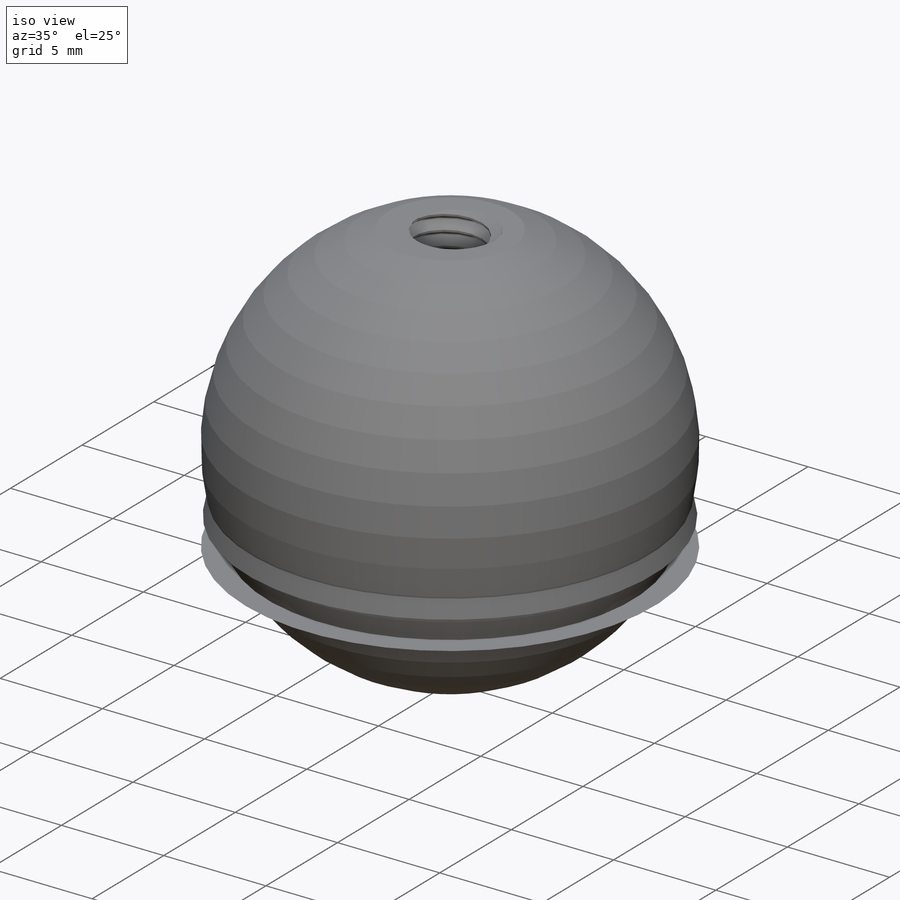
[diagram: iso view]
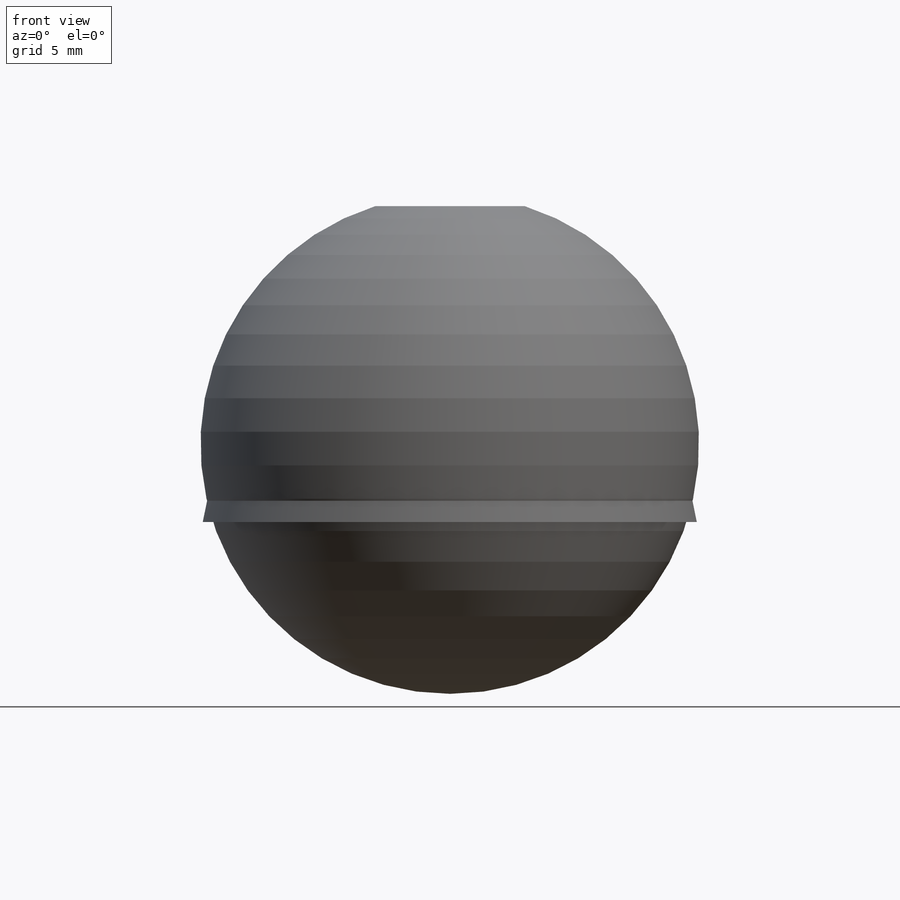
[diagram: front view]
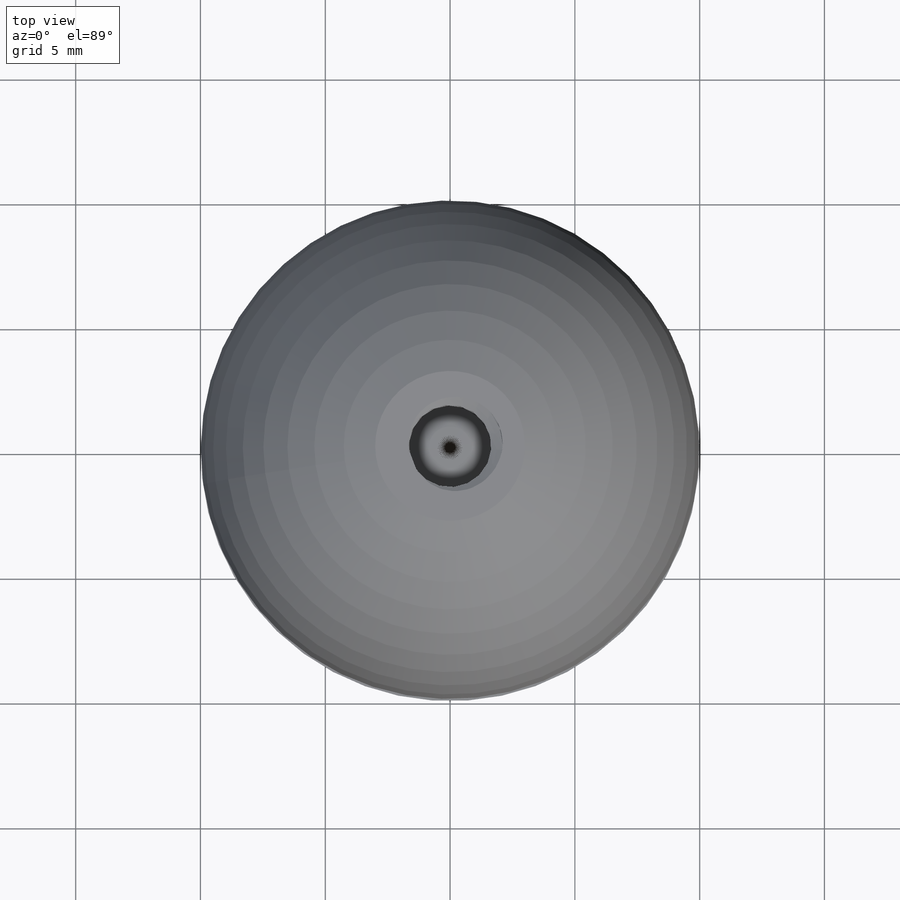
[diagram: top view]
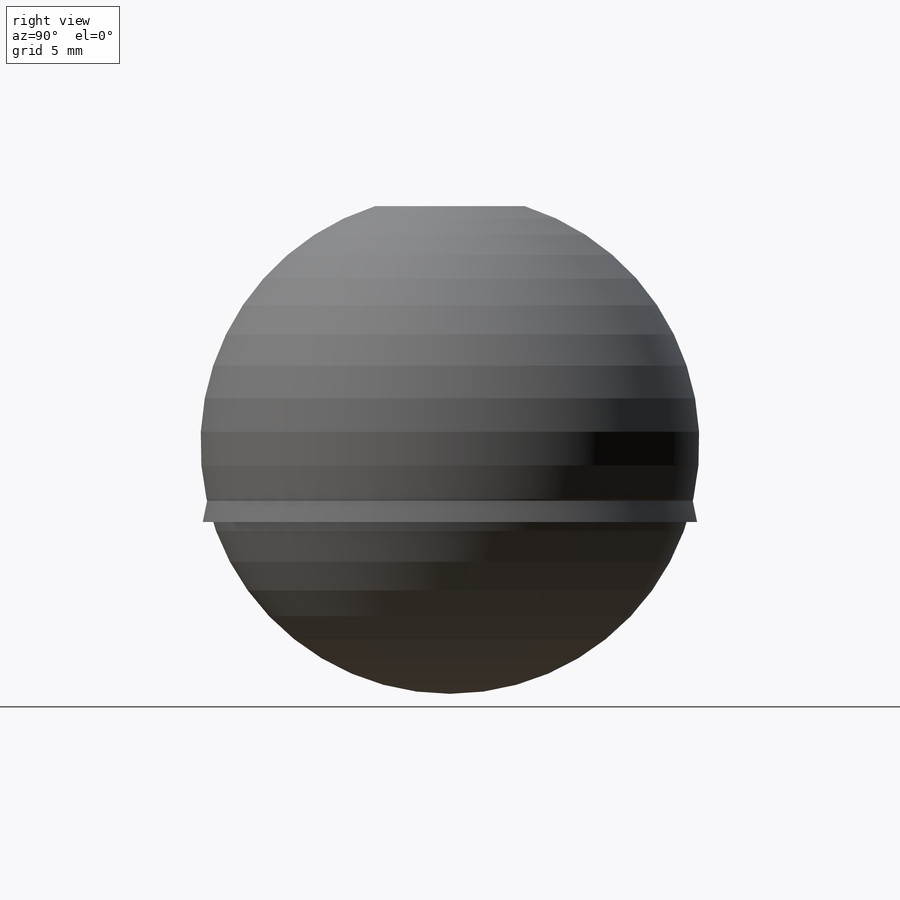
[diagram: right view]
SOLIDWORKS PART (.sldprt)
format: sldprt  version: not decoded by parser v0  size: 748,544 bytes
history: native  units: mm
features: sketch x6, plane x4, material x1, extrude x1, hole x1, helix x1, sweep x1, revolve x1 (+9 scaffold rows collapsed)
feature tree (25):
  scaffold x9  (default folders/planes/origin — collapsed)
  material  "Plástico personalizado"
  plane  "Alzado"
  plane  "Planta"
  plane  "Vista lateral"
  sketch  "Croquis1"  dims[D1=6.0mm]
  extrude  "Saliente-Extruir1"  Depth=14mm
  hole  "Perforador para roscar para macho de roscar para M4x0.71"  Depth=11mm  [1 undecoded]
  sketch  "Croquis3D1"
  sketch  "Croquis2"  dims[hole-wizard template sketch: 46 standard entries collapsed; hole parameters kept: c15.Diámetro de taladro=3.3mm c15.Profundidad de taladro=11.0mm c15.D3=~14.816244mm c15.Ángulo de perforador=118.0deg]
  sketch  "Croquis3"
  helix  "Hélice/Espiral1"  Pitch=11mm
  plane  "Plano1"
  sketch  "Croquis4"  dims[c1.D4=~0.174409mm c1.D1=0.6125mm c1.D2=~0.735395mm c2.D2=60.0deg c2.D3=~1.080143mm c2.D4=0.525mm c3.D3=~0.075777mm]
  sweep  "Cortar-Barrer1"
  sketch  "Croquis5"  dims[D1=~25.319424mm]
  revolve  "Revolución1"  Angle=360deg
decode coverage: 8 of 11 modeling features carry decoded parameters
note: ~ marks probable driven/reference dimensions
note: 1 parameter value undecoded
note: suppression state not decoded; provenance and decode notes live in map.json
